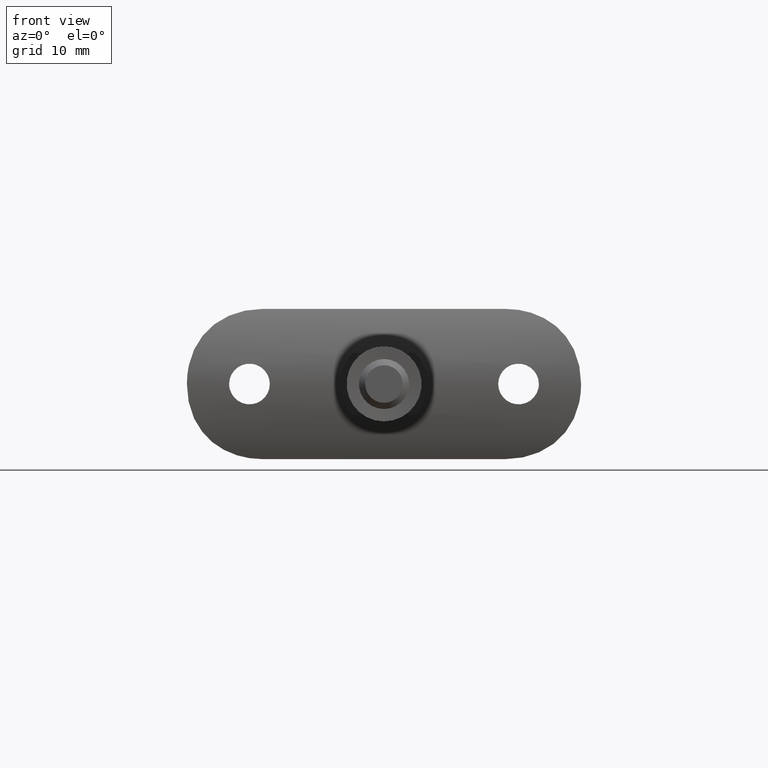
[diagram: clean part render]
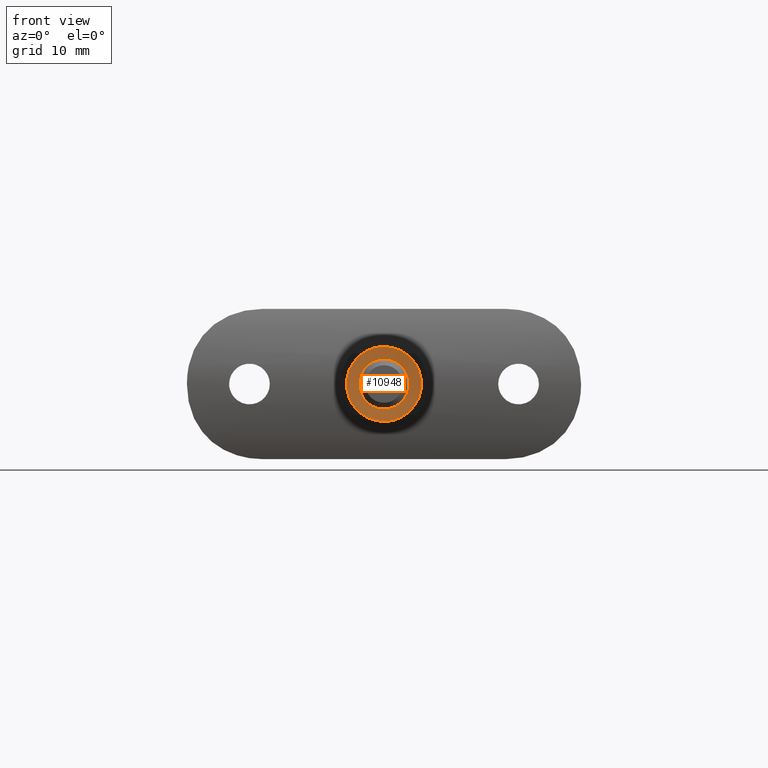
[diagram: same view with one face highlighted and labeled with its STEP entity id]
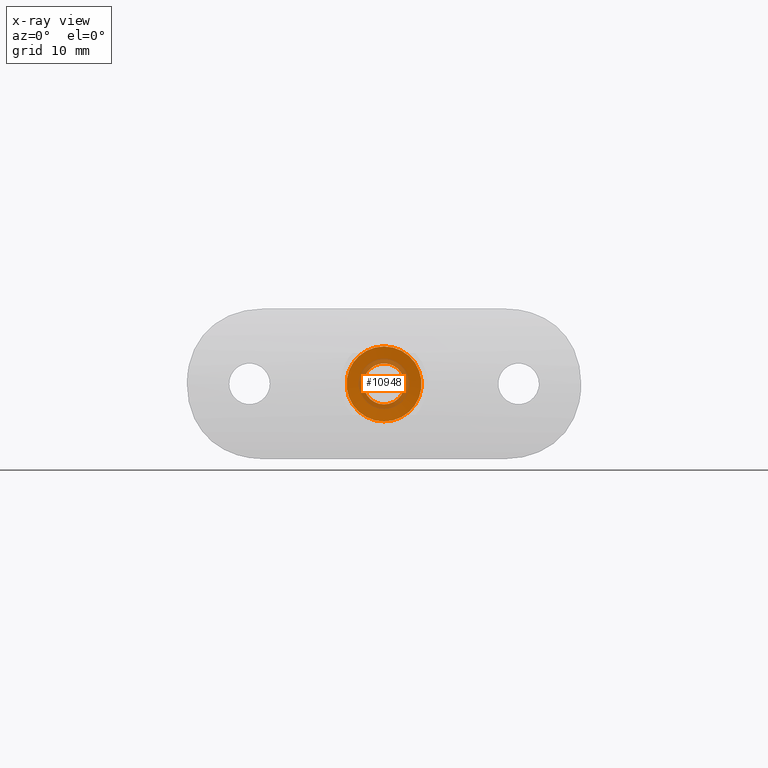
[diagram: x-ray of the same camera — body ghosted, the highlighted face saturated]
A machine part, front view. The second image highlights one B-rep face of the part: STEP entity #10948.
The next image is the same camera in x-ray: the body ghosted, the highlighted face saturated — about 21% of this face is hidden behind the body in this view.
In plain terms, the highlighted conical surface has half-angle 85 deg.
Its self-contained STEP definition (entity closure, byte-faithful):
#917 = CARTESIAN_POINT ( 'NONE',  ( 0.0000000000000000000, 0.0000000000000000000, 0.0000000000000000000 ) ) ;
#1457 = VERTEX_POINT ( 'NONE', #7858 ) ;
#1522 = CIRCLE ( 'NONE', #10319, 6.000000000000000000 ) ;
#1611 = CONICAL_SURFACE ( 'NONE', #14677, 3.271788935686913200, 1.483529864195186600 ) ;
#2686 = EDGE_CURVE ( 'NONE', #1457, #1457, #1522, .T. ) ;
#3241 = DIRECTION ( 'NONE',  ( 0.0000000000000000000, 0.0000000000000000000, -1.000000000000000000 ) ) ;
#3351 = CARTESIAN_POINT ( 'NONE',  ( 0.0000000000000000000, 0.2386875398333737600, -3.271788935686913200 ) ) ;
#3620 = FACE_BOUND ( 'NONE', #5141, .T. ) ;
#5141 = EDGE_LOOP ( 'NONE', ( #5976 ) ) ;
#5334 = DIRECTION ( 'NONE',  ( -0.0000000000000000000, -1.000000000000000000, -0.0000000000000000000 ) ) ;
#5791 = EDGE_CURVE ( 'NONE', #10360, #10360, #8393, .T. ) ;
#5976 = ORIENTED_EDGE ( 'NONE', *, *, #5791, .F. ) ;
#6677 = FACE_OUTER_BOUND ( 'NONE', #15063, .T. ) ;
#7858 = CARTESIAN_POINT ( 'NONE',  ( 0.0000000000000000000, 0.0000000000000000000, -6.000000000000000000 ) ) ;
#8393 = CIRCLE ( 'NONE', #14810, 3.271788935686913200 ) ;
#10193 = DIRECTION ( 'NONE',  ( -0.0000000000000000000, -1.000000000000000000, -0.0000000000000000000 ) ) ;
#10319 = AXIS2_PLACEMENT_3D ( 'NONE', #917, #10193, #3241 ) ;
#10360 = VERTEX_POINT ( 'NONE', #3351 ) ;
#10576 = DIRECTION ( 'NONE',  ( -0.0000000000000000000, -1.000000000000000000, -0.0000000000000000000 ) ) ;
#10826 = CARTESIAN_POINT ( 'NONE',  ( 0.0000000000000000000, 0.2386875398333737600, 0.0000000000000000000 ) ) ;
#10948 = ADVANCED_FACE ( 'NONE', ( #6677, #3620 ), #1611, .F. ) ;
#11630 = DIRECTION ( 'NONE',  ( 0.0000000000000000000, 0.0000000000000000000, -1.000000000000000000 ) ) ;
#11735 = CARTESIAN_POINT ( 'NONE',  ( 0.0000000000000000000, 0.2386875398333737600, 0.0000000000000000000 ) ) ;
#12000 = DIRECTION ( 'NONE',  ( 0.0000000000000000000, 0.0000000000000000000, -1.000000000000000000 ) ) ;
#14126 = ORIENTED_EDGE ( 'NONE', *, *, #2686, .T. ) ;
#14677 = AXIS2_PLACEMENT_3D ( 'NONE', #11735, #10576, #11630 ) ;
#14810 = AXIS2_PLACEMENT_3D ( 'NONE', #10826, #5334, #12000 ) ;
#15063 = EDGE_LOOP ( 'NONE', ( #14126 ) ) ;